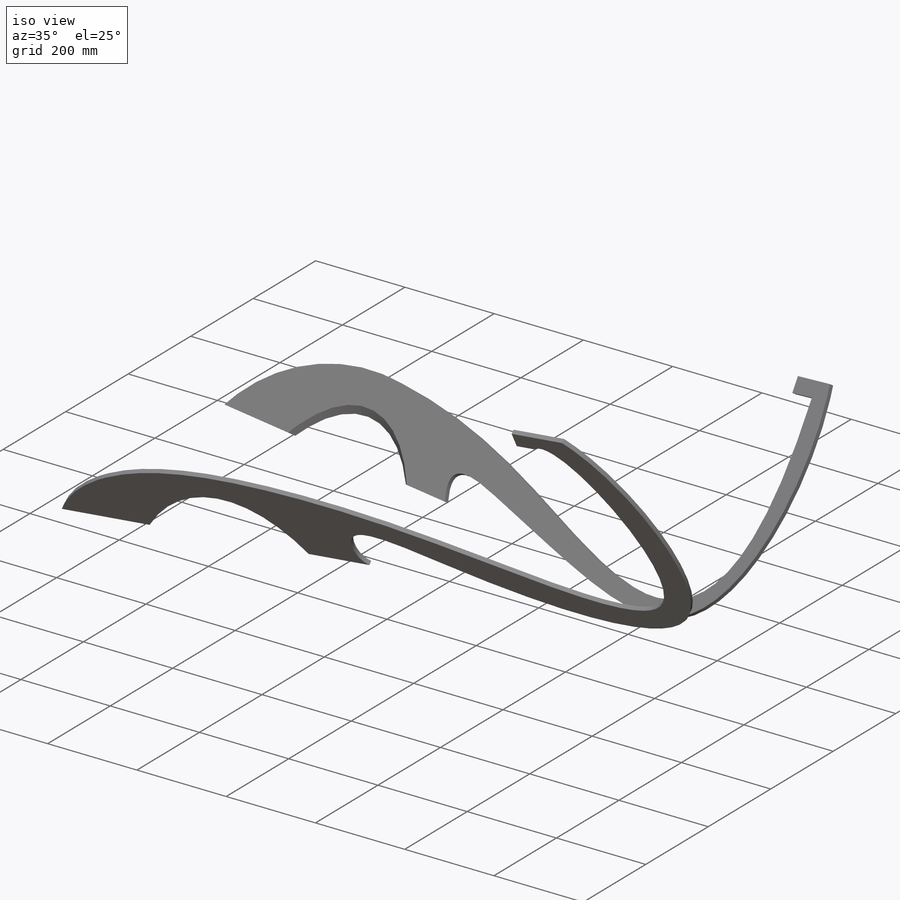
[diagram: iso view]
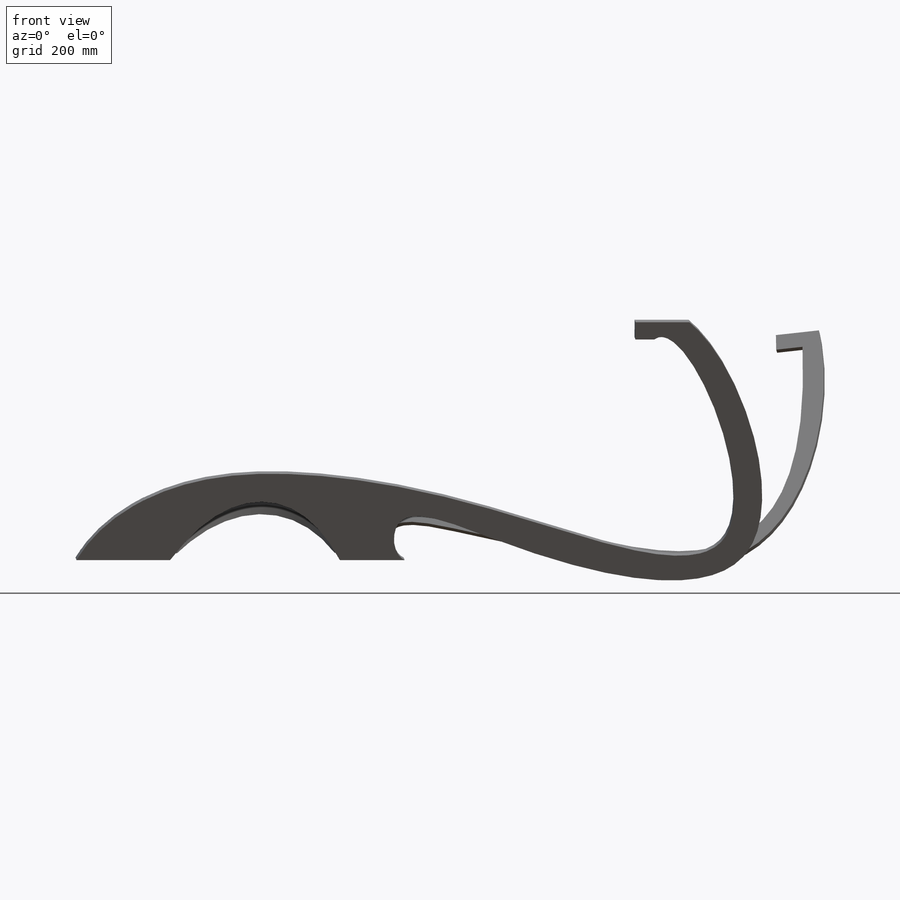
[diagram: front view]
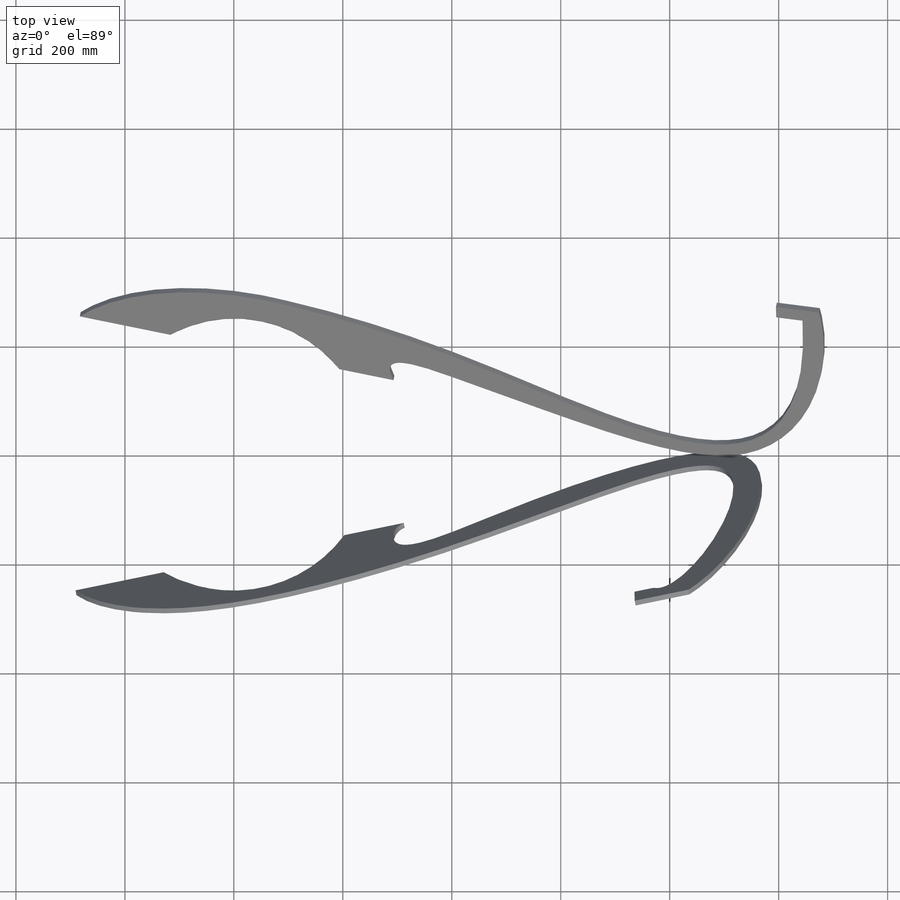
[diagram: top view]
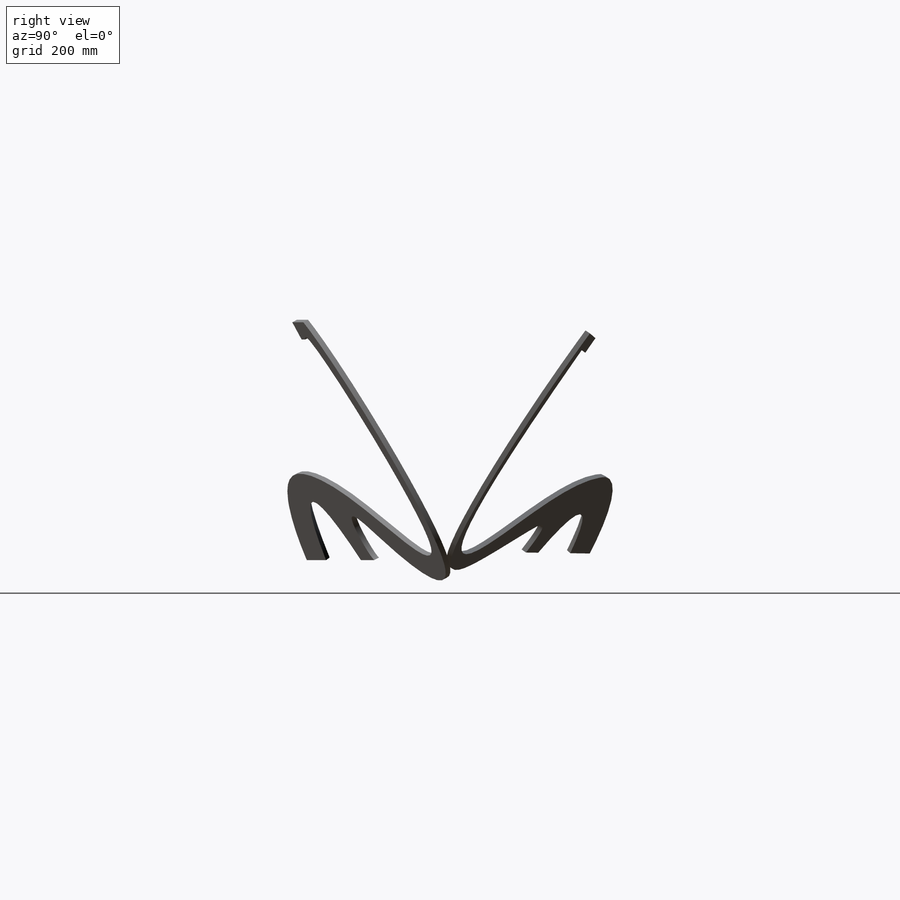
[diagram: right view]
SOLIDWORKS PART (.sldprt)
format: sldprt  version: not decoded by parser v0  size: 254,464 bytes
history: native  units: mm
features: sketch x9, plane x5, extrude x2, cut_extrude x2, material x1 (+11 scaffold rows collapsed)
feature tree (30):
  scaffold x11  (default folders/planes/origin — collapsed)
  material  "Material <not specified>"
  sketch  "Sketch1"  dims[D3=500.0mm D1=500.0mm D2=1000.0mm]
  sketch  "Sketch2"  dims[c1.D1=~456.06073mm c2.D1=45.0deg c2.D2=250.0mm c3.D1=250.0mm c3.D2=250.0mm c4.D2=45.0deg c5.D2=405.0mm c5.D3=~330.070511mm c6.D3=45.0deg]
  plane  "Plane1"
  sketch  "Sketch3"  dims[c1.D1=~214.347829mm c2.D1=120.0deg c2.D2=~577.350269mm c3.D1=~770.291975mm c4.D1=120.0deg]
  plane  "Plane2"
  sketch  "Sketch4"
  extrude  "Boss-Extrude1"  Depth=10mm
  plane  "Plane3"
  sketch  "Sketch7"  dims[c1.D1=50.0mm c1.D2=50.0mm c2.D1=355.0mm c2.D2=50.0mm]
  sketch  "Sketch8"  dims[D1=30.0mm D2=~38.44792mm]
  cut_extrude  "Cut-Extrude3"  Depth=10mm
  plane  "Plane4"
  sketch  "Sketch9"
  extrude  "Boss-Extrude2"  Depth=10mm
  sketch  "Sketch6"
  cut_extrude  "Cut-Extrude4"  Depth=1000mm
  plane  "Plane5"
  sketch  "Sketch10"
decode coverage: 9 of 13 modeling features carry decoded parameters
note: ~ marks probable driven/reference dimensions
note: suppression state not decoded; provenance and decode notes live in map.json
